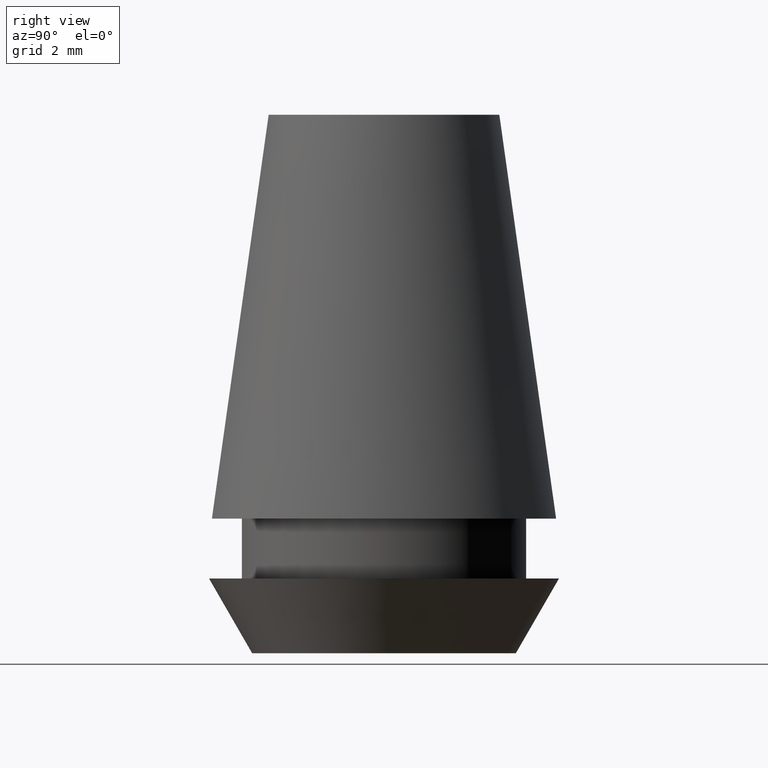
[diagram: clean part render]
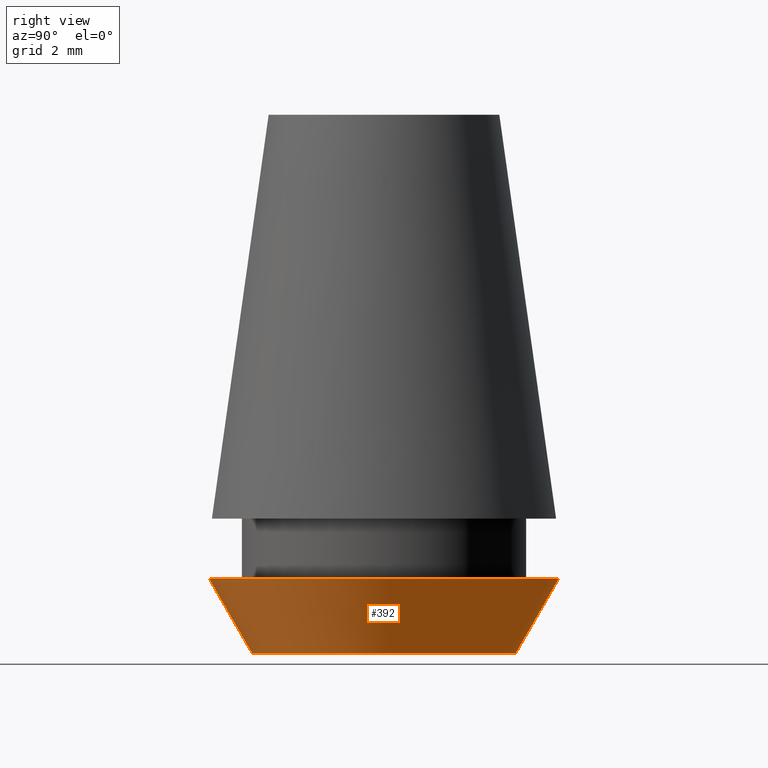
[diagram: same view with one face highlighted and labeled with its STEP entity id]
A machine part, right view. The second image highlights one B-rep face of the part: STEP entity #392.
In plain terms, the highlighted conical surface has half-angle 30 deg.
Its self-contained STEP definition (entity closure, byte-faithful):
#78=CARTESIAN_POINT('',(0.E0,1.162802135790E-14,-1.8E1));
#79=DIRECTION('',(0.E0,0.E0,1.E0));
#80=DIRECTION('',(0.E0,-1.E0,0.E0));
#81=AXIS2_PLACEMENT_3D('',#78,#79,#80);
#110=DIRECTION('',(0.E0,-5.E-1,-8.660254037844E-1));
#111=VECTOR('',#110,2.886751345948E0);
#112=CARTESIAN_POINT('',(0.E0,5.85E0,-1.55E1));
#113=LINE('',#112,#111);
#117=DIRECTION('',(0.E0,5.E-1,-8.660254037844E-1));
#118=VECTOR('',#117,2.886751345948E0);
#119=CARTESIAN_POINT('',(0.E0,-5.85E0,-1.55E1));
#120=LINE('',#119,#118);
#132=CARTESIAN_POINT('',(0.E0,1.162802135790E-14,-1.55E1));
#133=DIRECTION('',(0.E0,0.E0,-1.E0));
#134=DIRECTION('',(0.E0,1.E0,0.E0));
#135=AXIS2_PLACEMENT_3D('',#132,#133,#134);
#264=CARTESIAN_POINT('',(0.E0,-4.406624327026E0,-1.8E1));
#265=CARTESIAN_POINT('',(0.E0,4.406624327026E0,-1.8E1));
#266=VERTEX_POINT('',#264);
#267=VERTEX_POINT('',#265);
#268=CARTESIAN_POINT('',(0.E0,5.85E0,-1.55E1));
#269=VERTEX_POINT('',#268);
#270=CARTESIAN_POINT('',(0.E0,-5.85E0,-1.55E1));
#271=VERTEX_POINT('',#270);
#378=CARTESIAN_POINT('',(0.E0,1.162802135790E-14,-1.675E1));
#379=DIRECTION('',(0.E0,0.E0,1.E0));
#380=DIRECTION('',(0.E0,1.E0,0.E0));
#381=AXIS2_PLACEMENT_3D('',#378,#379,#380);
#382=CONICAL_SURFACE('',#381,5.128312163513E0,3.E1);
#384=ORIENTED_EDGE('',*,*,#383,.T.);
#385=ORIENTED_EDGE('',*,*,#367,.F.);
#387=ORIENTED_EDGE('',*,*,#386,.F.);
#389=ORIENTED_EDGE('',*,*,#388,.F.);
#390=EDGE_LOOP('',(#384,#385,#387,#389));
#391=FACE_OUTER_BOUND('',#390,.F.);
#82=CIRCLE('',#81,4.406624327026E0);
#136=CIRCLE('',#135,5.85E0);
#367=EDGE_CURVE('',#266,#267,#82,.T.);
#383=EDGE_CURVE('',#269,#267,#113,.T.);
#386=EDGE_CURVE('',#271,#266,#120,.T.);
#388=EDGE_CURVE('',#269,#271,#136,.T.);
#392=ADVANCED_FACE('',(#391),#382,.T.);